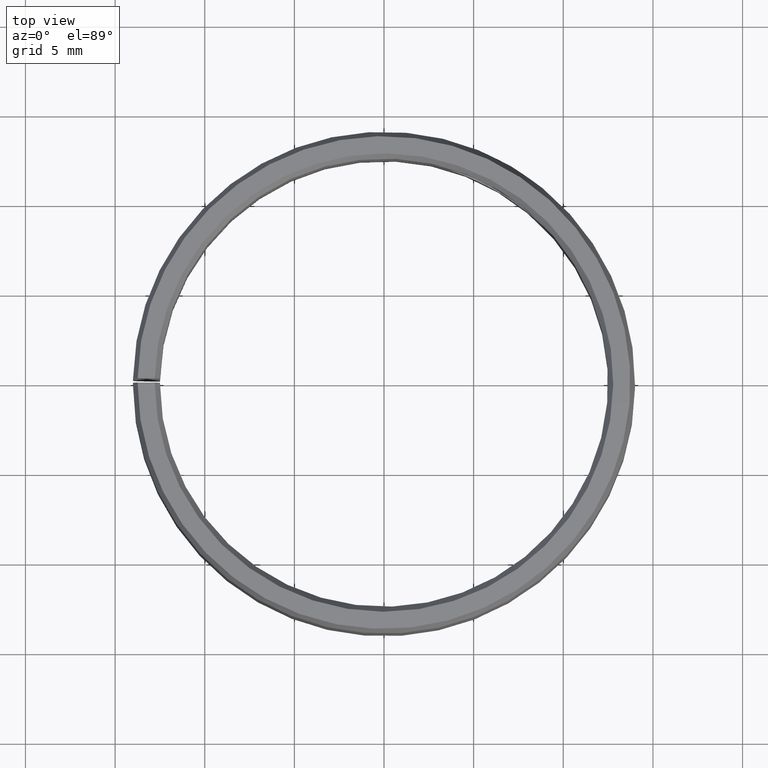
[diagram: clean part render]
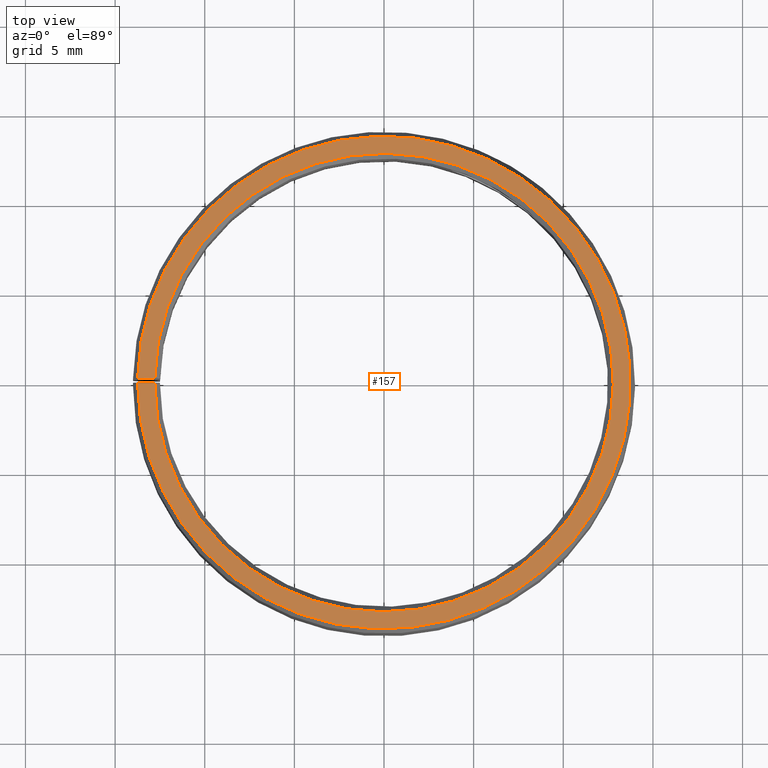
[diagram: same view with one face highlighted and labeled with its STEP entity id]
A machine part, top view. The second image highlights one B-rep face of the part: STEP entity #157.
In plain terms, the highlighted planar face has unit normal (0, -0, 1).
Its self-contained STEP definition (entity closure, byte-faithful):
#157=ADVANCED_FACE('',(#174),#175,.T.);
#174=FACE_OUTER_BOUND('',#200,.T.);
#175=PLANE('',#201);
#200=EDGE_LOOP('',(#245,#246,#247,#248));
#201=AXIS2_PLACEMENT_3D('',#249,#250,#251);
#245=ORIENTED_EDGE('',*,*,#316,.T.);
#246=ORIENTED_EDGE('',*,*,#317,.T.);
#247=ORIENTED_EDGE('',*,*,#318,.F.);
#248=ORIENTED_EDGE('',*,*,#312,.F.);
#249=CARTESIAN_POINT('',(0.000239887180600323,0.0137431273723038,0.01));
#250=DIRECTION('',(-6.12323399573677E-017,0.0,1.0));
#251=DIRECTION('',(1.0,0.0,6.12323399573677E-017));
#312=EDGE_CURVE('',#346,#347,#348,.T.);
#316=EDGE_CURVE('',#346,#354,#355,.T.);
#317=EDGE_CURVE('',#354,#356,#357,.T.);
#318=EDGE_CURVE('',#347,#356,#358,.T.);
#346=VERTEX_POINT('',#396);
#347=VERTEX_POINT('',#397);
#348=CIRCLE('',#398,0.0137452208360137);
#354=VERTEX_POINT('',#406);
#355=LINE('',#407,#408);
#356=VERTEX_POINT('',#409);
#357=CIRCLE('',#410,0.0127886751345948);
#358=LINE('',#411,#412);
#396=CARTESIAN_POINT('',(0.000239887180600323,0.0137431273723038,0.01));
#397=CARTESIAN_POINT('',(-6.93889390390723E-018,0.0137452208360136,0.01));
#398=AXIS2_PLACEMENT_3D('',#572,#573,#574);
#406=CARTESIAN_POINT('',(0.000223193156243324,0.0127867273574285,0.01));
#407=CARTESIAN_POINT('',(0.000239887180600323,0.0137431273723038,0.01));
#408=VECTOR('',#580,1.0);
#409=CARTESIAN_POINT('',(-6.93889390390723E-018,0.0127886751345948,0.01));
#410=AXIS2_PLACEMENT_3D('',#581,#582,#583);
#411=CARTESIAN_POINT('',(-6.93889390390723E-018,0.0137452208360136,0.01));
#412=VECTOR('',#584,1.0);
#572=CARTESIAN_POINT('',(-6.93889390390723E-018,-6.93889390390723E-018,0.01));
#573=DIRECTION('',(6.12323399573677E-017,0.0,-1.0));
#574=DIRECTION('',(-1.0,0.0,-6.12323399573677E-017));
#580=DIRECTION('',(-0.0174524064372836,-0.999847695156391,-1.0686516840419E-018));
#581=CARTESIAN_POINT('',(-6.93889390390723E-018,-6.93889390390723E-018,0.01));
#582=DIRECTION('',(6.12323399573677E-017,0.0,-1.0));
#583=DIRECTION('',(-1.0,0.0,-6.12323399573677E-017));
#584=DIRECTION('',(0.0,-1.0,0.0));